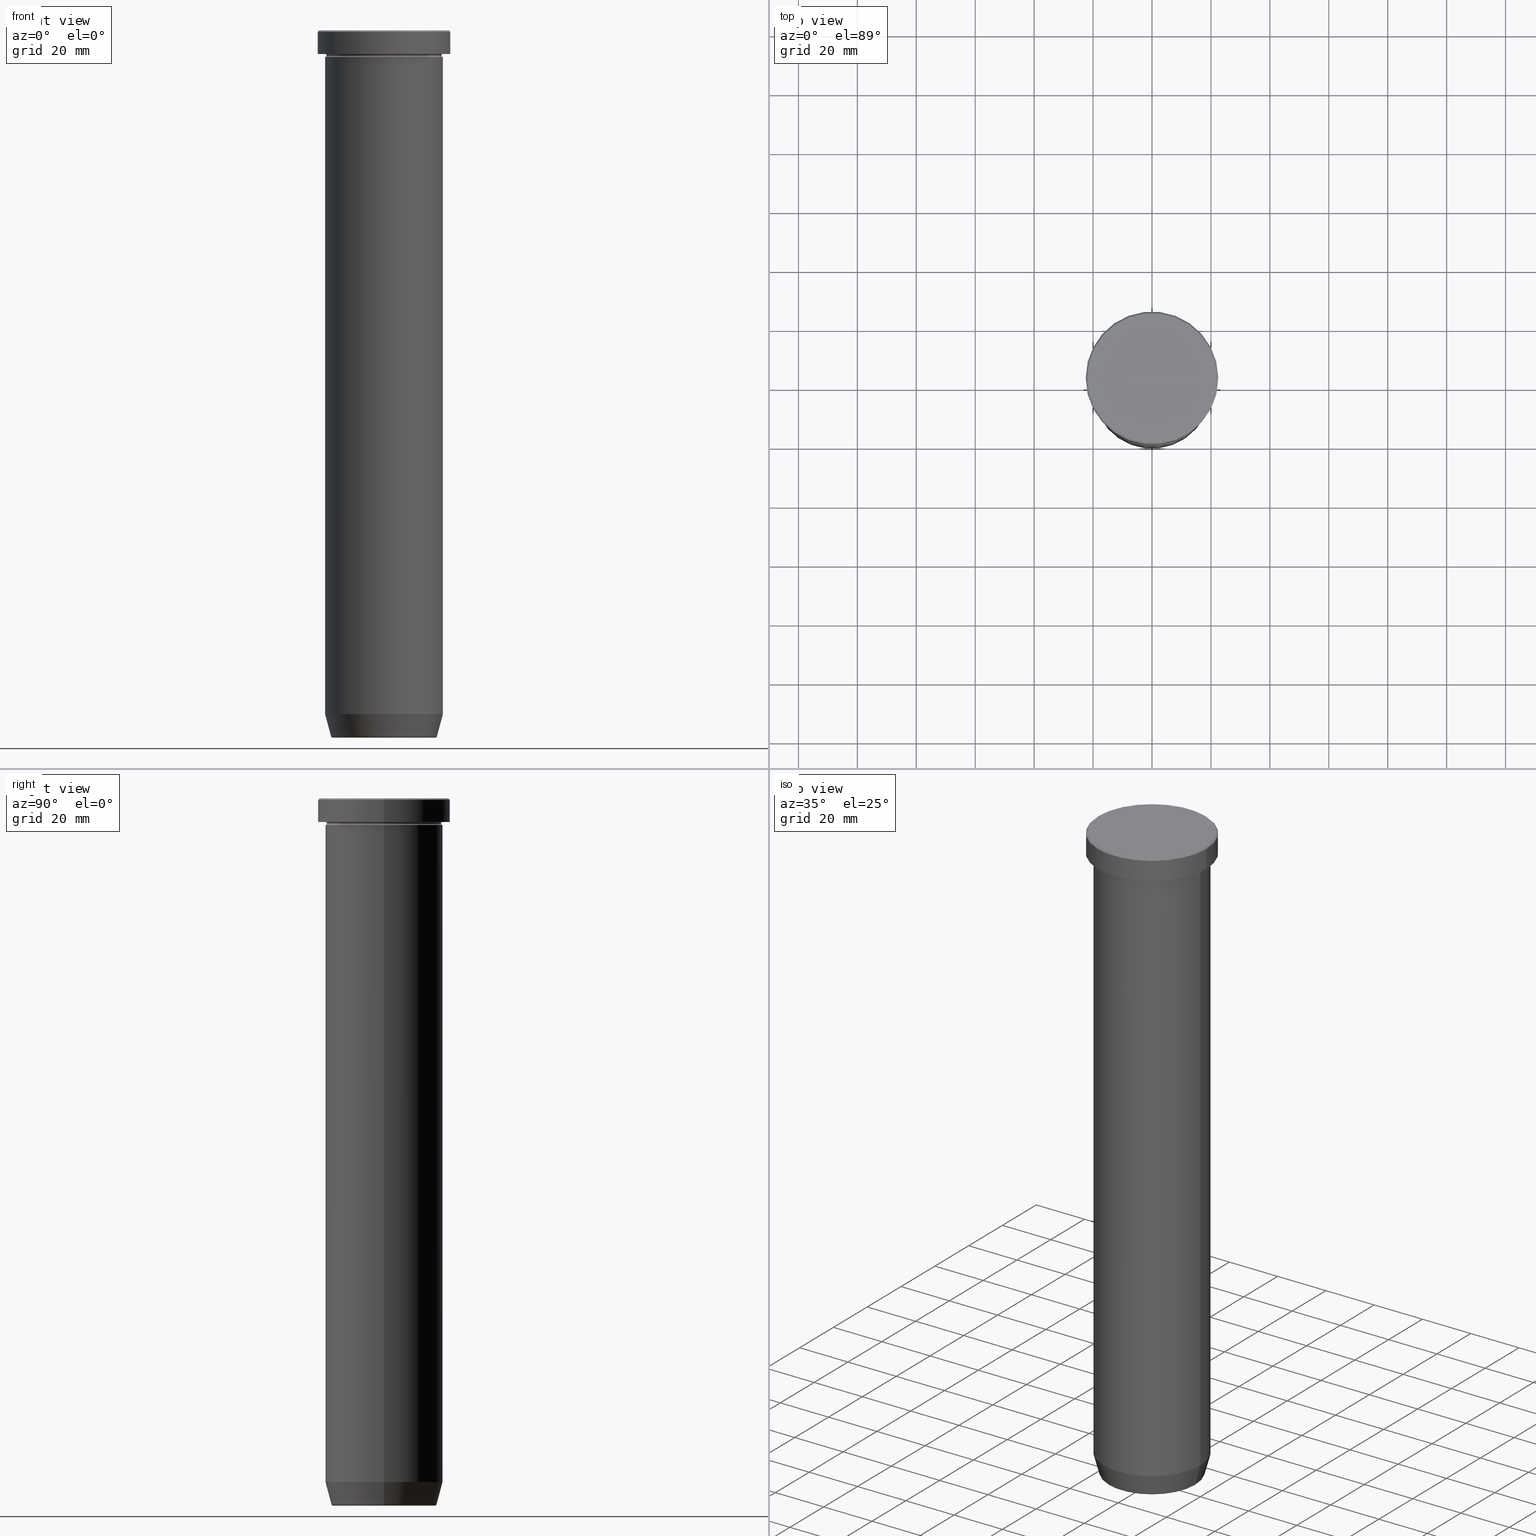
[diagram: canonical four-view strip — front | top / right | iso, engineering-drawing reading convention]
A machine part, canonical four-view strip (front | top / right | iso — engineering-drawing reading convention). The complete STEP part file that produces these views, byte-faithful:
ISO-10303-21;
HEADER;
FILE_DESCRIPTION (( 'STEP AP203' ),
    '1' );
FILE_NAME ('8bd0.STEP',
    '2024-01-02T17:34:54',
    ( '' ),
    ( '' ),
    'SwSTEP 2.0',
    'SolidWorks 2019',
    '' );
FILE_SCHEMA (( 'CONFIG_CONTROL_DESIGN' ));
ENDSEC;

DATA;
#1 = DIRECTION ( 'NONE',  ( 1.000000000000000000, 0.000000000000000000, 0.000000000000000000 ) ) ;
#2 = ADVANCED_FACE ( 'NONE', ( #218 ), #393, .F. ) ;
#3 = ORIENTED_EDGE ( 'NONE', *, *, #151, .F. ) ;
#4 = ADVANCED_FACE ( 'NONE', ( #82 ), #266, .T. ) ;
#5 = AXIS2_PLACEMENT_3D ( 'NONE', #219, #407, #364 ) ;
#6 = APPROVAL_PERSON_ORGANIZATION ( #49, #308, #545 ) ;
#7 = APPROVAL_STATUS ( 'not_yet_approved' ) ;
#8 = ORIENTED_EDGE ( 'NONE', *, *, #159, .T. ) ;
#9 = DIRECTION ( 'NONE',  ( -0.000000000000000000, -0.000000000000000000, 1.000000000000000000 ) ) ;
#10 = DIRECTION ( 'NONE',  ( 1.000000000000000000, 0.000000000000000000, 0.000000000000000000 ) ) ;
#11 = ORIENTED_EDGE ( 'NONE', *, *, #558, .T. ) ;
#12 = ADVANCED_FACE ( 'NONE', ( #68 ), #206, .F. ) ;
#13 = CARTESIAN_POINT ( 'NONE',  ( 0.000000000000000000, 0.000000000000000000, -8.499999999999998224 ) ) ;
#14 = EDGE_LOOP ( 'NONE', ( #440, #342, #324, #197 ) ) ;
#15 = ORIENTED_EDGE ( 'NONE', *, *, #556, .F. ) ;
#16 = TOROIDAL_SURFACE ( 'NONE', #594, 17.47274296656153680, 0.5000000000000000000 ) ;
#17 = CARTESIAN_POINT ( 'NONE',  ( 0.000000000000000000, 0.000000000000000000, 0.000000000000000000 ) ) ;
#18 = AXIS2_PLACEMENT_3D ( 'NONE', #39, #225, #591 ) ;
#19 = DIRECTION ( 'NONE',  ( 0.7071067811865426878, 8.659560562354874926E-17, -0.7071067811865524577 ) ) ;
#20 = DIRECTION ( 'NONE',  ( 0.000000000000000000, 0.000000000000000000, -1.000000000000000000 ) ) ;
#21 = DIRECTION ( 'NONE',  ( 0.000000000000000000, 0.000000000000000000, -1.000000000000000000 ) ) ;
#22 = ORIENTED_EDGE ( 'NONE', *, *, #445, .T. ) ;
#23 = FACE_OUTER_BOUND ( 'NONE', #326, .T. ) ;
#24 = EDGE_CURVE ( 'NONE', #300, #38, #570, .T. ) ;
#25 = CLOSED_SHELL ( 'NONE', ( #41, #339, #119, #454, #4, #171, #2, #73 ) ) ;
#26 = ORIENTED_EDGE ( 'NONE', *, *, #256, .T. ) ;
#27 = DIRECTION ( 'NONE',  ( 1.000000000000000000, 0.000000000000000000, 0.000000000000000000 ) ) ;
#28 = CIRCLE ( 'NONE', #361, 22.50000000000000000 ) ;
#29 = EDGE_LOOP ( 'NONE', ( #55, #426, #236, #427 ) ) ;
#30 = DIRECTION ( 'NONE',  ( -0.000000000000000000, -0.000000000000000000, 1.000000000000000000 ) ) ;
#31 = CALENDAR_DATE ( 2024, 2, 1 ) ;
#32 = EDGE_LOOP ( 'NONE', ( #369, #200, #66, #192 ) ) ;
#33 = APPROVAL_DATE_TIME ( #400, #539 ) ;
#34 = EDGE_CURVE ( 'NONE', #518, #245, #132, .T. ) ;
#35 = AXIS2_PLACEMENT_3D ( 'NONE', #391, #434, #428 ) ;
#36 = CIRCLE ( 'NONE', #5, 20.00000000000000000 ) ;
#37 = DIRECTION ( 'NONE',  ( -0.2588190451025212391, 3.169619151431771721E-17, 0.9659258262890680902 ) ) ;
#38 = VERTEX_POINT ( 'NONE', #372 ) ;
#39 = CARTESIAN_POINT ( 'NONE',  ( 0.000000000000000000, 0.000000000000000000, -8.499999999999998224 ) ) ;
#40 = CARTESIAN_POINT ( 'NONE',  ( 0.000000000000000000, 0.000000000000000000, -0.5000000000000004441 ) ) ;
#41 = ADVANCED_FACE ( 'NONE', ( #465 ), #535, .T. ) ;
#42 = DIRECTION ( 'NONE',  ( -0.000000000000000000, -0.000000000000000000, 1.000000000000000000 ) ) ;
#43 = ORIENTED_EDGE ( 'NONE', *, *, #259, .T. ) ;
#44 = CIRCLE ( 'NONE', #415, 22.00000000000000711 ) ;
#45 = AXIS2_PLACEMENT_3D ( 'NONE', #580, #265, #402 ) ;
#46 = EDGE_LOOP ( 'NONE', ( #97, #250, #515, #564 ) ) ;
#47 = CC_DESIGN_DATE_AND_TIME_ASSIGNMENT ( #215, #495, ( #569 ) ) ;
#48 = ORIENTED_EDGE ( 'NONE', *, *, #444, .F. ) ;
#49 = PERSON_AND_ORGANIZATION ( #316, #584 ) ;
#50 = AXIS2_PLACEMENT_3D ( 'NONE', #254, #165, #346 ) ;
#51 = CONICAL_SURFACE ( 'NONE', #348, 22.00000000000000711, 0.7853981633974415066 ) ;
#52 = DIRECTION ( 'NONE',  ( -0.000000000000000000, -0.000000000000000000, 1.000000000000000000 ) ) ;
#53 = DIRECTION ( 'NONE',  ( -0.000000000000000000, -0.000000000000000000, 1.000000000000000000 ) ) ;
#54 = EDGE_LOOP ( 'NONE', ( #441, #334 ) ) ;
#55 = ORIENTED_EDGE ( 'NONE', *, *, #497, .T. ) ;
#56 = ORIENTED_EDGE ( 'NONE', *, *, #223, .T. ) ;
#57 = ORIENTED_EDGE ( 'NONE', *, *, #319, .T. ) ;
#58 = AXIS2_PLACEMENT_3D ( 'NONE', #511, #550, #417 ) ;
#59 = CARTESIAN_POINT ( 'NONE',  ( -22.50000000000000000, 2.755455298081544778E-15, -0.5000000000000004441 ) ) ;
#60 = AXIS2_PLACEMENT_3D ( 'NONE', #336, #253, #442 ) ;
#61 = ORIENTED_EDGE ( 'NONE', *, *, #259, .F. ) ;
#62 = CARTESIAN_POINT ( 'NONE',  ( -20.00000000000000000, 2.449293598294706513E-15, -8.999999999999998224 ) ) ;
#63 = EDGE_LOOP ( 'NONE', ( #508, #436, #289, #150 ) ) ;
#64 = ADVANCED_FACE ( 'NONE', ( #136 ), #597, .T. ) ;
#65 = LINE ( 'NONE', #478, #523 ) ;
#66 = ORIENTED_EDGE ( 'NONE', *, *, #103, .T. ) ;
#67 = CARTESIAN_POINT ( 'NONE',  ( 17.47274296656153680, 0.000000000000000000, -240.0000000000000000 ) ) ;
#68 = FACE_OUTER_BOUND ( 'NONE', #376, .T. ) ;
#69 = ORIENTED_EDGE ( 'NONE', *, *, #382, .T. ) ;
#70 = DIRECTION ( 'NONE',  ( 0.2588190451025212391, 0.000000000000000000, 0.9659258262890680902 ) ) ;
#71 = CARTESIAN_POINT ( 'NONE',  ( 0.000000000000000000, 0.000000000000000000, 0.000000000000000000 ) ) ;
#72 = CALENDAR_DATE ( 2024, 2, 1 ) ;
#73 = ADVANCED_FACE ( 'NONE', ( #377 ), #16, .T. ) ;
#74 = FACE_OUTER_BOUND ( 'NONE', #275, .T. ) ;
#75 = AXIS2_PLACEMENT_3D ( 'NONE', #271, #542, #451 ) ;
#76 = CC_DESIGN_PERSON_AND_ORGANIZATION_ASSIGNMENT ( #303, #486, ( #569 ) ) ;
#77 = PERSON_AND_ORGANIZATION_ROLE ( 'design_owner' ) ;
#78 = CARTESIAN_POINT ( 'NONE',  ( 20.00000000000000000, 0.000000000000000000, -8.499999999999996447 ) ) ;
#79 = PERSON_AND_ORGANIZATION ( #316, #584 ) ;
#80 = ORIENTED_EDGE ( 'NONE', *, *, #181, .F. ) ;
#81 = CARTESIAN_POINT ( 'NONE',  ( 20.00000000000000000, 0.000000000000000000, -8.999999999999998224 ) ) ;
#82 = FACE_OUTER_BOUND ( 'NONE', #524, .T. ) ;
#83 = ORIENTED_EDGE ( 'NONE', *, *, #107, .F. ) ;
#84 = CIRCLE ( 'NONE', #311, 0.5000000000000004441 ) ;
#85 = EDGE_LOOP ( 'NONE', ( #335, #148, #302, #189 ) ) ;
#86 = EDGE_CURVE ( 'NONE', #450, #479, #310, .T. ) ;
#87 = CYLINDRICAL_SURFACE ( 'NONE', #461, 22.50000000000000000 ) ;
#88 = CARTESIAN_POINT ( 'NONE',  ( -20.00000000000000355, 2.449293598294706907E-15, -231.9999999999999716 ) ) ;
#89 = ORIENTED_EDGE ( 'NONE', *, *, #264, .F. ) ;
#90 = CLOSED_SHELL ( 'NONE', ( #472, #255, #105, #470, #599, #64, #111, #301, #456, #153, #12, #188, #283 ) ) ;
#91 = DIRECTION ( 'NONE',  ( 0.000000000000000000, 0.000000000000000000, -1.000000000000000000 ) ) ;
#92 = CONICAL_SURFACE ( 'NONE', #437, 17.85640646055101399, 0.2617993877991499629 ) ;
#93 = ORIENTED_EDGE ( 'NONE', *, *, #34, .F. ) ;
#94 = CARTESIAN_POINT ( 'NONE',  ( 0.000000000000000000, 0.000000000000000000, -50.00000000000000000 ) ) ;
#95 = ORIENTED_EDGE ( 'NONE', *, *, #24, .F. ) ;
#96 = DIRECTION ( 'NONE',  ( -0.000000000000000000, -0.000000000000000000, 1.000000000000000000 ) ) ;
#97 = ORIENTED_EDGE ( 'NONE', *, *, #243, .F. ) ;
#98 = FACE_OUTER_BOUND ( 'NONE', #32, .T. ) ;
#99 = EDGE_CURVE ( 'NONE', #38, #300, #44, .T. ) ;
#100 = AXIS2_PLACEMENT_3D ( 'NONE', #498, #274, #186 ) ;
#101 = CIRCLE ( 'NONE', #194, 20.00000000000000000 ) ;
#102 = DIRECTION ( 'NONE',  ( -1.000000000000000000, 0.000000000000000000, 0.000000000000000000 ) ) ;
#103 = EDGE_CURVE ( 'NONE', #555, #284, #134, .T. ) ;
#104 = EDGE_LOOP ( 'NONE', ( #15, #157, #366, #333 ) ) ;
#105 = ADVANCED_FACE ( 'NONE', ( #420 ), #373, .F. ) ;
#106 = CARTESIAN_POINT ( 'NONE',  ( 0.000000000000000000, 0.000000000000000000, -8.499999999999996447 ) ) ;
#107 = EDGE_CURVE ( 'NONE', #38, #555, #309, .T. ) ;
#108 = LOCAL_TIME ( 18, 34, 54.00000000000000000, #504 ) ;
#109 = AXIS2_PLACEMENT_3D ( 'NONE', #78, #164, #296 ) ;
#110 = APPROVAL_STATUS ( 'not_yet_approved' ) ;
#111 = ADVANCED_FACE ( 'NONE', ( #496 ), #360, .T. ) ;
#112 = CARTESIAN_POINT ( 'NONE',  ( 0.000000000000000000, 0.000000000000000000, -7.999999999999998224 ) ) ;
#113 = PERSON_AND_ORGANIZATION ( #316, #584 ) ;
#114 = DIRECTION ( 'NONE',  ( 0.000000000000000000, -1.000000000000000000, 0.000000000000000000 ) ) ;
#115 = CIRCLE ( 'NONE', #323, 20.00000000000000000 ) ;
#116 = FACE_OUTER_BOUND ( 'NONE', #562, .T. ) ;
#117 = CIRCLE ( 'NONE', #561, 17.47274296656153680 ) ;
#118 = COORDINATED_UNIVERSAL_TIME_OFFSET ( 1, 0, .AHEAD. ) ;
#119 = ADVANCED_FACE ( 'NONE', ( #534 ), #494, .T. ) ;
#120 = DIRECTION ( 'NONE',  ( -0.000000000000000000, -0.000000000000000000, 1.000000000000000000 ) ) ;
#121 = LINE ( 'NONE', #268, #448 ) ;
#122 = CARTESIAN_POINT ( 'NONE',  ( 17.47274296656153680, 0.000000000000000000, -239.5000000000000000 ) ) ;
#123 = CC_DESIGN_PERSON_AND_ORGANIZATION_ASSIGNMENT ( #315, #506, ( #514 ) ) ;
#124 = CARTESIAN_POINT ( 'NONE',  ( 0.000000000000000000, 0.000000000000000000, 0.000000000000000000 ) ) ;
#125 = VECTOR ( 'NONE', #520, 1000.000000000000000 ) ;
#126 = DIRECTION ( 'NONE',  ( 0.000000000000000000, 0.000000000000000000, -1.000000000000000000 ) ) ;
#127 = DIRECTION ( 'NONE',  ( -0.000000000000000000, -0.000000000000000000, 1.000000000000000000 ) ) ;
#128 = VECTOR ( 'NONE', #163, 1000.000000000000000 ) ;
#129 = DIRECTION ( 'NONE',  ( -0.000000000000000000, -0.000000000000000000, 1.000000000000000000 ) ) ;
#130 = DIRECTION ( 'NONE',  ( 0.000000000000000000, 0.000000000000000000, -1.000000000000000000 ) ) ;
#131 = DIRECTION ( 'NONE',  ( -0.000000000000000000, -0.000000000000000000, 1.000000000000000000 ) ) ;
#132 = LINE ( 'NONE', #190, #546 ) ;
#133 = ORIENTED_EDGE ( 'NONE', *, *, #312, .T. ) ;
#134 = CIRCLE ( 'NONE', #394, 22.50000000000000000 ) ;
#135 = EDGE_CURVE ( 'NONE', #479, #152, #305, .T. ) ;
#136 = FACE_OUTER_BOUND ( 'NONE', #383, .T. ) ;
#137 = UNCERTAINTY_MEASURE_WITH_UNIT (LENGTH_MEASURE( 1.000000000000000082E-05 ), #563, 'distance_accuracy_value', 'NONE');
#138 = ORIENTED_EDGE ( 'NONE', *, *, #328, .T. ) ;
#139 = DIRECTION ( 'NONE',  ( -0.000000000000000000, -0.000000000000000000, 1.000000000000000000 ) ) ;
#140 = ORIENTED_EDGE ( 'NONE', *, *, #86, .T. ) ;
#141 = ORIENTED_EDGE ( 'NONE', *, *, #243, .T. ) ;
#142 = ORIENTED_EDGE ( 'NONE', *, *, #526, .T. ) ;
#143 = DIRECTION ( 'NONE',  ( -0.000000000000000000, -0.000000000000000000, 1.000000000000000000 ) ) ;
#144 = EDGE_CURVE ( 'NONE', #567, #555, #586, .T. ) ;
#145 = EDGE_CURVE ( 'NONE', #152, #331, #121, .T. ) ;
#146 = EDGE_CURVE ( 'NONE', #245, #469, #193, .T. ) ;
#147 = FACE_OUTER_BOUND ( 'NONE', #460, .T. ) ;
#148 = ORIENTED_EDGE ( 'NONE', *, *, #99, .F. ) ;
#149 = AXIS2_PLACEMENT_3D ( 'NONE', #322, #9, #551 ) ;
#150 = ORIENTED_EDGE ( 'NONE', *, *, #256, .F. ) ;
#151 = EDGE_CURVE ( 'NONE', #176, #567, #491, .T. ) ;
#152 = VERTEX_POINT ( 'NONE', #467 ) ;
#153 = ADVANCED_FACE ( 'NONE', ( #521 ), #196, .T. ) ;
#154 = DIRECTION ( 'NONE',  ( -0.000000000000000000, -0.000000000000000000, 1.000000000000000000 ) ) ;
#155 = DIRECTION ( 'NONE',  ( 1.000000000000000000, 0.000000000000000000, 0.000000000000000000 ) ) ;
#156 = EDGE_CURVE ( 'NONE', #205, #331, #182, .T. ) ;
#157 = ORIENTED_EDGE ( 'NONE', *, *, #444, .T. ) ;
#158 = APPLICATION_CONTEXT ( 'configuration controlled 3d designs of mechanical parts and assemblies' ) ;
#159 = EDGE_CURVE ( 'NONE', #559, #160, #395, .T. ) ;
#160 = VERTEX_POINT ( 'NONE', #429 ) ;
#161 = DIRECTION ( 'NONE',  ( -1.000000000000000000, 0.000000000000000000, -0.000000000000000000 ) ) ;
#162 = APPROVAL_DATE_TIME ( #577, #235 ) ;
#163 = DIRECTION ( 'NONE',  ( -0.7071067811865426878, 0.000000000000000000, -0.7071067811865524577 ) ) ;
#164 = DIRECTION ( 'NONE',  ( 0.000000000000000000, -1.000000000000000000, 0.000000000000000000 ) ) ;
#165 = DIRECTION ( 'NONE',  ( -0.000000000000000000, -0.000000000000000000, 1.000000000000000000 ) ) ;
#166 = CARTESIAN_POINT ( 'NONE',  ( -17.47274296656153680, 2.139793874632401172E-15, -239.5000000000000000 ) ) ;
#167 = APPROVAL_PERSON_ORGANIZATION ( #79, #235, #488 ) ;
#168 = AXIS2_PLACEMENT_3D ( 'NONE', #263, #30, #532 ) ;
#169 = CONICAL_SURFACE ( 'NONE', #149, 17.85640646055101399, 0.2617993877991499629 ) ;
#170 = DIRECTION ( 'NONE',  ( 1.000000000000000000, 0.000000000000000000, 0.000000000000000000 ) ) ;
#171 = ADVANCED_FACE ( 'NONE', ( #147 ), #169, .T. ) ;
#172 = CARTESIAN_POINT ( 'NONE',  ( -20.00000000000000000, 2.449293598294706513E-15, -50.00000000000000000 ) ) ;
#173 = CARTESIAN_POINT ( 'NONE',  ( -17.47274296656153680, 2.169366823916868503E-15, -240.0000000000000000 ) ) ;
#174 = PERSON_AND_ORGANIZATION_ROLE ( 'design_supplier' ) ;
#175 = CC_DESIGN_PERSON_AND_ORGANIZATION_ASSIGNMENT ( #493, #77, ( #252 ) ) ;
#176 = VERTEX_POINT ( 'NONE', #381 ) ;
#177 = DIRECTION ( 'NONE',  ( -0.000000000000000000, -0.000000000000000000, 1.000000000000000000 ) ) ;
#178 = CARTESIAN_POINT ( 'NONE',  ( 0.000000000000000000, 0.000000000000000000, -240.0000000000000000 ) ) ;
#179 = CARTESIAN_POINT ( 'NONE',  ( -20.00000000000000000, 2.449293598294706513E-15, 0.000000000000000000 ) ) ;
#180 = APPROVAL_DATE_TIME ( #593, #308 ) ;
#181 = EDGE_CURVE ( 'NONE', #380, #288, #115, .T. ) ;
#182 = CIRCLE ( 'NONE', #238, 20.00000000000000355 ) ;
#183 = CIRCLE ( 'NONE', #45, 0.5000000000000004441 ) ;
#184 = CARTESIAN_POINT ( 'NONE',  ( 0.000000000000000000, 0.000000000000000000, -239.5000000000000000 ) ) ;
#185 = FACE_OUTER_BOUND ( 'NONE', #233, .T. ) ;
#186 = DIRECTION ( 'NONE',  ( 1.000000000000000000, 0.000000000000000000, 0.000000000000000000 ) ) ;
#187 = DIRECTION ( 'NONE',  ( -0.000000000000000000, -0.000000000000000000, 1.000000000000000000 ) ) ;
#188 = ADVANCED_FACE ( 'NONE', ( #473 ), #547, .F. ) ;
#189 = ORIENTED_EDGE ( 'NONE', *, *, #328, .F. ) ;
#190 = CARTESIAN_POINT ( 'NONE',  ( 20.00000000000000000, 0.000000000000000000, 0.000000000000000000 ) ) ;
#191 = DIRECTION ( 'NONE',  ( -0.000000000000000000, -0.000000000000000000, 1.000000000000000000 ) ) ;
#192 = ORIENTED_EDGE ( 'NONE', *, *, #505, .F. ) ;
#193 = CIRCLE ( 'NONE', #528, 20.00000000000000000 ) ;
#194 = AXIS2_PLACEMENT_3D ( 'NONE', #341, #566, #27 ) ;
#195 = APPROVAL_PERSON_ORGANIZATION ( #356, #539, #490 ) ;
#196 = CYLINDRICAL_SURFACE ( 'NONE', #522, 20.00000000000000000 ) ;
#197 = ORIENTED_EDGE ( 'NONE', *, *, #359, .F. ) ;
#198 = VERTEX_POINT ( 'NONE', #509 ) ;
#199 = PRODUCT_DEFINITION ( 'NEZN�M�', '', #514, #516 ) ;
#200 = ORIENTED_EDGE ( 'NONE', *, *, #144, .T. ) ;
#201 = ORIENTED_EDGE ( 'NONE', *, *, #216, .F. ) ;
#202 =( NAMED_UNIT ( * ) PLANE_ANGLE_UNIT ( ) SI_UNIT ( $, .RADIAN. ) );
#203 = CARTESIAN_POINT ( 'NONE',  ( 0.000000000000000000, 0.000000000000000000, 0.000000000000000000 ) ) ;
#204 = EDGE_LOOP ( 'NONE', ( #57, #8 ) ) ;
#205 = VERTEX_POINT ( 'NONE', #278 ) ;
#206 = TOROIDAL_SURFACE ( 'NONE', #168, 20.00000000000000000, 0.5000000000000000000 ) ;
#207 = CIRCLE ( 'NONE', #583, 17.95570587970606979 ) ;
#208 = DIRECTION ( 'NONE',  ( 1.000000000000000000, 0.000000000000000000, 0.000000000000000000 ) ) ;
#209 = CARTESIAN_POINT ( 'NONE',  ( 0.000000000000000000, 0.000000000000000000, -240.0000000000000000 ) ) ;
#210 = PLANE ( 'NONE',  #337 ) ;
#211 = CARTESIAN_POINT ( 'NONE',  ( 20.00000000000000000, 2.449293598294706513E-15, -8.499999999999998224 ) ) ;
#212 = CARTESIAN_POINT ( 'NONE',  ( 0.000000000000000000, 0.000000000000000000, 0.000000000000000000 ) ) ;
#213 = AXIS2_PLACEMENT_3D ( 'NONE', #330, #244, #102 ) ;
#214 = ORIENTED_EDGE ( 'NONE', *, *, #579, .F. ) ;
#215 = DATE_AND_TIME ( #72, #320 ) ;
#216 = EDGE_CURVE ( 'NONE', #518, #295, #492, .T. ) ;
#217 = CARTESIAN_POINT ( 'NONE',  ( 0.000000000000000000, 0.000000000000000000, -50.00000000000000000 ) ) ;
#218 = FACE_OUTER_BOUND ( 'NONE', #474, .T. ) ;
#219 = CARTESIAN_POINT ( 'NONE',  ( 0.000000000000000000, 0.000000000000000000, -50.00000000000000000 ) ) ;
#220 = SHAPE_DEFINITION_REPRESENTATION ( #260, #585 ) ;
#221 = EDGE_CURVE ( 'NONE', #295, #518, #406, .T. ) ;
#222 = CARTESIAN_POINT ( 'NONE',  ( -19.50000000000000000, 2.418677428316022726E-15, -8.499999999999996447 ) ) ;
#223 = EDGE_CURVE ( 'NONE', #300, #284, #65, .T. ) ;
#224 = APPLICATION_PROTOCOL_DEFINITION ( 'international standard', 'config_control_design', 1994, #430 ) ;
#225 = DIRECTION ( 'NONE',  ( 0.000000000000000000, 0.000000000000000000, -1.000000000000000000 ) ) ;
#226 = DIRECTION ( 'NONE',  ( 1.000000000000000000, 0.000000000000000000, 0.000000000000000000 ) ) ;
#227 = AXIS2_PLACEMENT_3D ( 'NONE', #229, #463, #232 ) ;
#228 = EDGE_CURVE ( 'NONE', #479, #450, #117, .T. ) ;
#229 = CARTESIAN_POINT ( 'NONE',  ( 0.000000000000000000, 0.000000000000000000, -50.00000000000000000 ) ) ;
#230 = COORDINATED_UNIVERSAL_TIME_OFFSET ( 1, 0, .AHEAD. ) ;
#231 = DIRECTION ( 'NONE',  ( -0.000000000000000000, -0.000000000000000000, 1.000000000000000000 ) ) ;
#232 = DIRECTION ( 'NONE',  ( 1.000000000000000000, 0.000000000000000000, 0.000000000000000000 ) ) ;
#233 = EDGE_LOOP ( 'NONE', ( #433, #590, #242, #138 ) ) ;
#234 = CC_DESIGN_APPROVAL ( #308, ( #514 ) ) ;
#235 = APPROVAL ( #110, 'NEUR�EN�' ) ;
#236 = ORIENTED_EDGE ( 'NONE', *, *, #156, .F. ) ;
#237 = ORIENTED_EDGE ( 'NONE', *, *, #86, .F. ) ;
#238 = AXIS2_PLACEMENT_3D ( 'NONE', #378, #53, #598 ) ;
#239 = CARTESIAN_POINT ( 'NONE',  ( 0.000000000000000000, 0.000000000000000000, -7.999999999999998224 ) ) ;
#240 = DIRECTION ( 'NONE',  ( -0.000000000000000000, -0.000000000000000000, 1.000000000000000000 ) ) ;
#241 = ORIENTED_EDGE ( 'NONE', *, *, #319, .F. ) ;
#242 = ORIENTED_EDGE ( 'NONE', *, *, #505, .T. ) ;
#243 = EDGE_CURVE ( 'NONE', #286, #388, #416, .T. ) ;
#244 = DIRECTION ( 'NONE',  ( -0.000000000000000000, -0.000000000000000000, 1.000000000000000000 ) ) ;
#245 = VERTEX_POINT ( 'NONE', #81 ) ;
#246 = AXIS2_PLACEMENT_3D ( 'NONE', #401, #120, #396 ) ;
#247 = CONICAL_SURFACE ( 'NONE', #279, 22.00000000000000711, 0.7853981633974415066 ) ;
#248 = CARTESIAN_POINT ( 'NONE',  ( -22.50000000000000000, 2.755455298081544778E-15, -7.999999999999998224 ) ) ;
#249 = CYLINDRICAL_SURFACE ( 'NONE', #60, 20.00000000000000000 ) ;
#250 = ORIENTED_EDGE ( 'NONE', *, *, #351, .T. ) ;
#251 = DIRECTION ( 'NONE',  ( -1.224646799147353207E-16, 1.000000000000000000, 0.000000000000000000 ) ) ;
#252 = PRODUCT ( '8bd0', '8bd0', '', ( #344 ) ) ;
#253 = DIRECTION ( 'NONE',  ( -0.000000000000000000, -0.000000000000000000, 1.000000000000000000 ) ) ;
#254 = CARTESIAN_POINT ( 'NONE',  ( 0.000000000000000000, 0.000000000000000000, 0.000000000000000000 ) ) ;
#255 = ADVANCED_FACE ( 'NONE', ( #455 ), #306, .F. ) ;
#256 = EDGE_CURVE ( 'NONE', #450, #198, #84, .T. ) ;
#257 = CARTESIAN_POINT ( 'NONE',  ( 19.50000000000000000, 0.000000000000000000, -8.499999999999996447 ) ) ;
#258 = CALENDAR_DATE ( 2024, 2, 1 ) ;
#259 = EDGE_CURVE ( 'NONE', #288, #380, #36, .T. ) ;
#260 = PRODUCT_DEFINITION_SHAPE ( 'NONE', 'NONE',  #199 ) ;
#261 = CIRCLE ( 'NONE', #513, 0.5000000000000004441 ) ;
#262 = DIRECTION ( 'NONE',  ( -0.000000000000000000, -0.000000000000000000, 1.000000000000000000 ) ) ;
#263 = CARTESIAN_POINT ( 'NONE',  ( 0.000000000000000000, 0.000000000000000000, -8.499999999999996447 ) ) ;
#264 = EDGE_CURVE ( 'NONE', #286, #160, #183, .T. ) ;
#265 = DIRECTION ( 'NONE',  ( -0.000000000000000000, -1.000000000000000000, -0.000000000000000000 ) ) ;
#266 = CYLINDRICAL_SURFACE ( 'NONE', #499, 20.00000000000000355 ) ;
#267 = COORDINATED_UNIVERSAL_TIME_OFFSET ( 1, 0, .AHEAD. ) ;
#268 = CARTESIAN_POINT ( 'NONE',  ( -17.85640646055101399, 2.186779101618792051E-15, -240.0000000000000000 ) ) ;
#269 = ORIENTED_EDGE ( 'NONE', *, *, #556, .T. ) ;
#270 = AXIS2_PLACEMENT_3D ( 'NONE', #313, #42, #419 ) ;
#271 = CARTESIAN_POINT ( 'NONE',  ( 0.000000000000000000, 0.000000000000000000, -8.499999999999996447 ) ) ;
#272 = CIRCLE ( 'NONE', #109, 0.5000000000000004441 ) ;
#273 = AXIS2_PLACEMENT_3D ( 'NONE', #17, #471, #208 ) ;
#274 = DIRECTION ( 'NONE',  ( 0.000000000000000000, 0.000000000000000000, -1.000000000000000000 ) ) ;
#275 = EDGE_LOOP ( 'NONE', ( #386, #133, #501, #93 ) ) ;
#276 = DIRECTION ( 'NONE',  ( -0.000000000000000000, -0.000000000000000000, 1.000000000000000000 ) ) ;
#277 = AXIS2_PLACEMENT_3D ( 'NONE', #282, #231, #553 ) ;
#278 = CARTESIAN_POINT ( 'NONE',  ( 20.00000000000000355, 0.000000000000000000, -231.9999999999999716 ) ) ;
#279 = AXIS2_PLACEMENT_3D ( 'NONE', #212, #126, #592 ) ;
#280 = LOCAL_TIME ( 18, 34, 54.00000000000000000, #230 ) ;
#281 = DIRECTION ( 'NONE',  ( -0.000000000000000000, -0.000000000000000000, 1.000000000000000000 ) ) ;
#282 = CARTESIAN_POINT ( 'NONE',  ( 0.000000000000000000, 0.000000000000000000, -239.5000000000000000 ) ) ;
#283 = ADVANCED_FACE ( 'NONE', ( #588 ), #51, .T. ) ;
#284 = VERTEX_POINT ( 'NONE', #543 ) ;
#285 = DIRECTION ( 'NONE',  ( -1.000000000000000000, 0.000000000000000000, 0.000000000000000000 ) ) ;
#286 = VERTEX_POINT ( 'NONE', #222 ) ;
#287 = DIRECTION ( 'NONE',  ( 1.000000000000000000, 0.000000000000000000, 0.000000000000000000 ) ) ;
#288 = VERTEX_POINT ( 'NONE', #587 ) ;
#289 = ORIENTED_EDGE ( 'NONE', *, *, #497, .F. ) ;
#290 = AXIS2_PLACEMENT_3D ( 'NONE', #217, #20, #161 ) ;
#291 = DIRECTION ( 'NONE',  ( -1.000000000000000000, -1.224646799147349509E-16, 0.000000000000000000 ) ) ;
#292 = DIRECTION ( 'NONE',  ( 1.000000000000000000, 0.000000000000000000, 0.000000000000000000 ) ) ;
#293 = ORIENTED_EDGE ( 'NONE', *, *, #475, .T. ) ;
#294 =( NAMED_UNIT ( * ) SI_UNIT ( $, .STERADIAN. ) SOLID_ANGLE_UNIT ( ) );
#295 = VERTEX_POINT ( 'NONE', #172 ) ;
#296 = DIRECTION ( 'NONE',  ( 0.000000000000000000, 0.000000000000000000, -1.000000000000000000 ) ) ;
#297 = AXIS2_PLACEMENT_3D ( 'NONE', #502, #541, #413 ) ;
#298 = CIRCLE ( 'NONE', #213, 17.95570587970606979 ) ;
#299 = CIRCLE ( 'NONE', #530, 0.5000000000000004441 ) ;
#300 = VERTEX_POINT ( 'NONE', #354 ) ;
#301 = ADVANCED_FACE ( 'NONE', ( #185 ), #87, .T. ) ;
#302 = ORIENTED_EDGE ( 'NONE', *, *, #107, .T. ) ;
#303 = PERSON_AND_ORGANIZATION ( #316, #584 ) ;
#304 = APPROVAL_STATUS ( 'not_yet_approved' ) ;
#305 = CIRCLE ( 'NONE', #321, 0.5000000000000004441 ) ;
#306 = TOROIDAL_SURFACE ( 'NONE', #18, 20.00000000000000000, 0.5000000000000000000 ) ;
#307 = DIRECTION ( 'NONE',  ( 0.000000000000000000, 0.000000000000000000, -1.000000000000000000 ) ) ;
#308 = APPROVAL ( #7, 'NEUR�EN�' ) ;
#309 = LINE ( 'NONE', #357, #128 ) ;
#310 = CIRCLE ( 'NONE', #100, 17.47274296656153680 ) ;
#311 = AXIS2_PLACEMENT_3D ( 'NONE', #122, #114, #596 ) ;
#312 = EDGE_CURVE ( 'NONE', #295, #469, #414, .T. ) ;
#313 = CARTESIAN_POINT ( 'NONE',  ( 0.000000000000000000, 0.000000000000000000, -7.999999999999998224 ) ) ;
#314 = DIRECTION ( 'NONE',  ( 0.000000000000000000, 0.000000000000000000, -1.000000000000000000 ) ) ;
#315 = PERSON_AND_ORGANIZATION ( #316, #584 ) ;
#316 = PERSON ( 'NEUR�EN�', 'NEUR�EN�', 'NEUR�EN�', ('NEUR�EN�'), ('NEUR�EN�'), ('NEUR�EN�') ) ;
#317 = DIRECTION ( 'NONE',  ( -1.000000000000000000, 0.000000000000000000, 0.000000000000000000 ) ) ;
#318 = DATE_AND_TIME ( #517, #280 ) ;
#319 = EDGE_CURVE ( 'NONE', #160, #559, #443, .T. ) ;
#320 = LOCAL_TIME ( 18, 34, 54.00000000000000000, #118 ) ;
#321 = AXIS2_PLACEMENT_3D ( 'NONE', #166, #347, #405 ) ;
#322 = CARTESIAN_POINT ( 'NONE',  ( 0.000000000000000000, 0.000000000000000000, -240.0000000000000000 ) ) ;
#323 = AXIS2_PLACEMENT_3D ( 'NONE', #94, #367, #292 ) ;
#324 = ORIENTED_EDGE ( 'NONE', *, *, #34, .T. ) ;
#325 = DIRECTION ( 'NONE',  ( -1.000000000000000000, 0.000000000000000000, 0.000000000000000000 ) ) ;
#326 = EDGE_LOOP ( 'NONE', ( #95, #56, #379, #83 ) ) ;
#327 = DIRECTION ( 'NONE',  ( 1.000000000000000000, 0.000000000000000000, 0.000000000000000000 ) ) ;
#328 = EDGE_CURVE ( 'NONE', #284, #555, #28, .T. ) ;
#329 = ORIENTED_EDGE ( 'NONE', *, *, #457, .F. ) ;
#330 = CARTESIAN_POINT ( 'NONE',  ( 0.000000000000000000, 0.000000000000000000, -239.6294095225512422 ) ) ;
#331 = VERTEX_POINT ( 'NONE', #88 ) ;
#332 = AXIS2_PLACEMENT_3D ( 'NONE', #13, #130, #317 ) ;
#333 = ORIENTED_EDGE ( 'NONE', *, *, #159, .F. ) ;
#334 = ORIENTED_EDGE ( 'NONE', *, *, #24, .T. ) ;
#335 = ORIENTED_EDGE ( 'NONE', *, *, #223, .F. ) ;
#336 = CARTESIAN_POINT ( 'NONE',  ( 0.000000000000000000, 0.000000000000000000, 0.000000000000000000 ) ) ;
#337 = AXIS2_PLACEMENT_3D ( 'NONE', #533, #307, #480 ) ;
#338 = PRODUCT_RELATED_PRODUCT_CATEGORY ( 'detail', '', ( #252 ) ) ;
#339 = ADVANCED_FACE ( 'NONE', ( #410 ), #92, .T. ) ;
#340 = CC_DESIGN_APPROVAL ( #539, ( #569 ) ) ;
#341 = CARTESIAN_POINT ( 'NONE',  ( 0.000000000000000000, 0.000000000000000000, -8.999999999999998224 ) ) ;
#342 = ORIENTED_EDGE ( 'NONE', *, *, #221, .T. ) ;
#343 = ORIENTED_EDGE ( 'NONE', *, *, #146, .T. ) ;
#344 = MECHANICAL_CONTEXT ( 'NONE', #158, 'mechanical' ) ;
#345 = FACE_BOUND ( 'NONE', #204, .T. ) ;
#346 = DIRECTION ( 'NONE',  ( 1.000000000000000000, 0.000000000000000000, 0.000000000000000000 ) ) ;
#347 = DIRECTION ( 'NONE',  ( 1.224646799147353207E-16, 1.000000000000000000, 0.000000000000000000 ) ) ;
#348 = AXIS2_PLACEMENT_3D ( 'NONE', #503, #349, #358 ) ;
#349 = DIRECTION ( 'NONE',  ( 0.000000000000000000, 0.000000000000000000, -1.000000000000000000 ) ) ;
#350 = SECURITY_CLASSIFICATION_LEVEL ( 'unclassified' ) ;
#351 = EDGE_CURVE ( 'NONE', #286, #469, #261, .T. ) ;
#352 = CARTESIAN_POINT ( 'NONE',  ( -22.50000000000000000, 2.755455298081544778E-15, 0.000000000000000000 ) ) ;
#353 = DIRECTION ( 'NONE',  ( 1.000000000000000000, 0.000000000000000000, 0.000000000000000000 ) ) ;
#354 = CARTESIAN_POINT ( 'NONE',  ( 22.00000000000000711, 2.724839128102860991E-15, 0.000000000000000000 ) ) ;
#355 = CARTESIAN_POINT ( 'NONE',  ( 22.50000000000000000, 0.000000000000000000, 0.000000000000000000 ) ) ;
#356 = PERSON_AND_ORGANIZATION ( #316, #584 ) ;
#357 = CARTESIAN_POINT ( 'NONE',  ( -22.00000000000000711, 0.000000000000000000, 0.000000000000000000 ) ) ;
#358 = DIRECTION ( 'NONE',  ( -1.000000000000000000, 0.000000000000000000, 0.000000000000000000 ) ) ;
#359 = EDGE_CURVE ( 'NONE', #469, #245, #101, .T. ) ;
#360 = PLANE ( 'NONE',  #297 ) ;
#361 = AXIS2_PLACEMENT_3D ( 'NONE', #424, #314, #544 ) ;
#362 = CARTESIAN_POINT ( 'NONE',  ( 20.00000000000000355, 0.000000000000000000, 0.000000000000000000 ) ) ;
#363 = DIRECTION ( 'NONE',  ( 1.000000000000000000, 0.000000000000000000, 0.000000000000000000 ) ) ;
#364 = DIRECTION ( 'NONE',  ( 1.000000000000000000, 0.000000000000000000, 0.000000000000000000 ) ) ;
#365 = LINE ( 'NONE', #362, #554 ) ;
#366 = ORIENTED_EDGE ( 'NONE', *, *, #264, .T. ) ;
#367 = DIRECTION ( 'NONE',  ( -0.000000000000000000, -0.000000000000000000, 1.000000000000000000 ) ) ;
#368 = DATE_TIME_ROLE ( 'creation_date' ) ;
#369 = ORIENTED_EDGE ( 'NONE', *, *, #151, .T. ) ;
#370 =( GEOMETRIC_REPRESENTATION_CONTEXT ( 3 ) GLOBAL_UNCERTAINTY_ASSIGNED_CONTEXT ( ( #137 ) ) GLOBAL_UNIT_ASSIGNED_CONTEXT ( ( #563, #202, #294 ) ) REPRESENTATION_CONTEXT ( 'NONE', 'WORKASPACE' ) );
#371 = CARTESIAN_POINT ( 'NONE',  ( 0.000000000000000000, 0.000000000000000000, -7.999999999999998224 ) ) ;
#372 = CARTESIAN_POINT ( 'NONE',  ( -22.00000000000000711, 0.000000000000000000, 0.000000000000000000 ) ) ;
#373 = TOROIDAL_SURFACE ( 'NONE', #435, 20.00000000000000000, 0.5000000000000000000 ) ;
#374 = DIRECTION ( 'NONE',  ( -0.000000000000000000, -0.000000000000000000, 1.000000000000000000 ) ) ;
#375 = VECTOR ( 'NONE', #129, 1000.000000000000000 ) ;
#376 = EDGE_LOOP ( 'NONE', ( #423, #48, #22, #343 ) ) ;
#377 = FACE_OUTER_BOUND ( 'NONE', #575, .T. ) ;
#378 = CARTESIAN_POINT ( 'NONE',  ( 0.000000000000000000, 0.000000000000000000, -231.9999999999999716 ) ) ;
#379 = ORIENTED_EDGE ( 'NONE', *, *, #103, .F. ) ;
#380 = VERTEX_POINT ( 'NONE', #398 ) ;
#381 = CARTESIAN_POINT ( 'NONE',  ( 22.50000000000000000, 0.000000000000000000, -7.999999999999998224 ) ) ;
#382 = EDGE_CURVE ( 'NONE', #198, #205, #581, .T. ) ;
#383 = EDGE_LOOP ( 'NONE', ( #201, #525 ) ) ;
#384 = ORIENTED_EDGE ( 'NONE', *, *, #475, .F. ) ;
#385 = AXIS2_PLACEMENT_3D ( 'NONE', #371, #96, #285 ) ;
#386 = ORIENTED_EDGE ( 'NONE', *, *, #216, .T. ) ;
#387 = MANIFOLD_SOLID_BREP ( 'Zkosen�1', #90 ) ;
#388 = VERTEX_POINT ( 'NONE', #257 ) ;
#389 = MANIFOLD_SOLID_BREP ( 'Zaoblit4', #25 ) ;
#390 = EDGE_LOOP ( 'NONE', ( #557, #43 ) ) ;
#391 = CARTESIAN_POINT ( 'NONE',  ( 0.000000000000000000, 0.000000000000000000, -231.9999999999999716 ) ) ;
#392 = ORIENTED_EDGE ( 'NONE', *, *, #156, .T. ) ;
#393 = PLANE ( 'NONE',  #459 ) ;
#394 = AXIS2_PLACEMENT_3D ( 'NONE', #40, #91, #462 ) ;
#395 = CIRCLE ( 'NONE', #449, 20.00000000000000000 ) ;
#396 = DIRECTION ( 'NONE',  ( 1.000000000000000000, 0.000000000000000000, 0.000000000000000000 ) ) ;
#397 = DIRECTION ( 'NONE',  ( 1.224646799147353207E-16, 1.000000000000000000, 0.000000000000000000 ) ) ;
#398 = CARTESIAN_POINT ( 'NONE',  ( 20.00000000000000000, 0.000000000000000000, -50.00000000000000000 ) ) ;
#399 = DIRECTION ( 'NONE',  ( 1.000000000000000000, 0.000000000000000000, 0.000000000000000000 ) ) ;
#400 = DATE_AND_TIME ( #31, #404 ) ;
#401 = CARTESIAN_POINT ( 'NONE',  ( 0.000000000000000000, 0.000000000000000000, 0.000000000000000000 ) ) ;
#402 = DIRECTION ( 'NONE',  ( 0.000000000000000000, 0.000000000000000000, -1.000000000000000000 ) ) ;
#403 = DIRECTION ( 'NONE',  ( -0.000000000000000000, -0.000000000000000000, 1.000000000000000000 ) ) ;
#404 = LOCAL_TIME ( 18, 34, 54.00000000000000000, #267 ) ;
#405 = DIRECTION ( 'NONE',  ( -1.000000000000000000, 1.224646799147349509E-16, 0.000000000000000000 ) ) ;
#406 = CIRCLE ( 'NONE', #481, 20.00000000000000000 ) ;
#407 = DIRECTION ( 'NONE',  ( -0.000000000000000000, -0.000000000000000000, 1.000000000000000000 ) ) ;
#408 = DIRECTION ( 'NONE',  ( -0.000000000000000000, -0.000000000000000000, 1.000000000000000000 ) ) ;
#409 = DIRECTION ( 'NONE',  ( 1.000000000000000000, 0.000000000000000000, 0.000000000000000000 ) ) ;
#410 = FACE_OUTER_BOUND ( 'NONE', #29, .T. ) ;
#411 = CARTESIAN_POINT ( 'NONE',  ( 0.000000000000000000, 0.000000000000000000, -8.499999999999996447 ) ) ;
#412 = CC_DESIGN_PERSON_AND_ORGANIZATION_ASSIGNMENT ( #536, #174, ( #514 ) ) ;
#413 = DIRECTION ( 'NONE',  ( 1.000000000000000000, 0.000000000000000000, 0.000000000000000000 ) ) ;
#414 = LINE ( 'NONE', #179, #375 ) ;
#415 = AXIS2_PLACEMENT_3D ( 'NONE', #548, #131, #589 ) ;
#416 = CIRCLE ( 'NONE', #75, 19.50000000000000000 ) ;
#417 = DIRECTION ( 'NONE',  ( -1.000000000000000000, 0.000000000000000000, -0.000000000000000000 ) ) ;
#418 = CC_DESIGN_PERSON_AND_ORGANIZATION_ASSIGNMENT ( #113, #538, ( #199 ) ) ;
#419 = DIRECTION ( 'NONE',  ( 1.000000000000000000, 0.000000000000000000, 0.000000000000000000 ) ) ;
#420 = FACE_OUTER_BOUND ( 'NONE', #46, .T. ) ;
#421 = CARTESIAN_POINT ( 'NONE',  ( 0.000000000000000000, 0.000000000000000000, -8.999999999999998224 ) ) ;
#422 = CARTESIAN_POINT ( 'NONE',  ( 0.000000000000000000, 0.000000000000000000, -50.00000000000000000 ) ) ;
#423 = ORIENTED_EDGE ( 'NONE', *, *, #351, .F. ) ;
#424 = CARTESIAN_POINT ( 'NONE',  ( 0.000000000000000000, 0.000000000000000000, -0.5000000000000004441 ) ) ;
#425 = CIRCLE ( 'NONE', #500, 22.50000000000000000 ) ;
#426 = ORIENTED_EDGE ( 'NONE', *, *, #145, .T. ) ;
#427 = ORIENTED_EDGE ( 'NONE', *, *, #382, .F. ) ;
#428 = DIRECTION ( 'NONE',  ( 1.000000000000000000, 0.000000000000000000, 0.000000000000000000 ) ) ;
#429 = CARTESIAN_POINT ( 'NONE',  ( -20.00000000000000000, 0.000000000000000000, -7.999999999999998224 ) ) ;
#430 = APPLICATION_CONTEXT ( 'configuration controlled 3d designs of mechanical parts and assemblies' ) ;
#431 = CC_DESIGN_DATE_AND_TIME_ASSIGNMENT ( #318, #368, ( #199 ) ) ;
#432 = CARTESIAN_POINT ( 'NONE',  ( 20.00000000000000000, 2.449293598294706513E-15, -7.999999999999998224 ) ) ;
#433 = ORIENTED_EDGE ( 'NONE', *, *, #144, .F. ) ;
#434 = DIRECTION ( 'NONE',  ( -0.000000000000000000, -0.000000000000000000, 1.000000000000000000 ) ) ;
#435 = AXIS2_PLACEMENT_3D ( 'NONE', #411, #177, #353 ) ;
#436 = ORIENTED_EDGE ( 'NONE', *, *, #135, .T. ) ;
#437 = AXIS2_PLACEMENT_3D ( 'NONE', #178, #127, #226 ) ;
#438 = ORIENTED_EDGE ( 'NONE', *, *, #145, .F. ) ;
#439 = LOCAL_TIME ( 18, 34, 54.00000000000000000, #446 ) ;
#440 = ORIENTED_EDGE ( 'NONE', *, *, #312, .F. ) ;
#441 = ORIENTED_EDGE ( 'NONE', *, *, #99, .T. ) ;
#442 = DIRECTION ( 'NONE',  ( 1.000000000000000000, 0.000000000000000000, 0.000000000000000000 ) ) ;
#443 = CIRCLE ( 'NONE', #385, 20.00000000000000000 ) ;
#444 = EDGE_CURVE ( 'NONE', #388, #286, #595, .T. ) ;
#445 = EDGE_CURVE ( 'NONE', #388, #245, #272, .T. ) ;
#446 = COORDINATED_UNIVERSAL_TIME_OFFSET ( 1, 0, .AHEAD. ) ;
#447 = LINE ( 'NONE', #355, #468 ) ;
#448 = VECTOR ( 'NONE', #37, 1000.000000000000114 ) ;
#449 = AXIS2_PLACEMENT_3D ( 'NONE', #239, #240, #325 ) ;
#450 = VERTEX_POINT ( 'NONE', #67 ) ;
#451 = DIRECTION ( 'NONE',  ( 1.000000000000000000, 0.000000000000000000, 0.000000000000000000 ) ) ;
#452 = DIRECTION ( 'NONE',  ( 1.000000000000000000, 0.000000000000000000, 0.000000000000000000 ) ) ;
#453 = CALENDAR_DATE ( 2024, 2, 1 ) ;
#454 = ADVANCED_FACE ( 'NONE', ( #576 ), #484, .F. ) ;
#455 = FACE_OUTER_BOUND ( 'NONE', #571, .T. ) ;
#456 = ADVANCED_FACE ( 'NONE', ( #345, #116 ), #210, .T. ) ;
#457 = EDGE_CURVE ( 'NONE', #567, #176, #425, .T. ) ;
#458 = DIRECTION ( 'NONE',  ( 0.000000000000000000, 0.000000000000000000, 1.000000000000000000 ) ) ;
#459 = AXIS2_PLACEMENT_3D ( 'NONE', #485, #573, #399 ) ;
#460 = EDGE_LOOP ( 'NONE', ( #438, #142, #69, #565 ) ) ;
#461 = AXIS2_PLACEMENT_3D ( 'NONE', #124, #276, #452 ) ;
#462 = DIRECTION ( 'NONE',  ( 1.000000000000000000, 0.000000000000000000, 0.000000000000000000 ) ) ;
#463 = DIRECTION ( 'NONE',  ( -0.000000000000000000, -0.000000000000000000, 1.000000000000000000 ) ) ;
#464 = ORIENTED_EDGE ( 'NONE', *, *, #228, .T. ) ;
#465 = FACE_OUTER_BOUND ( 'NONE', #63, .T. ) ;
#466 = CYLINDRICAL_SURFACE ( 'NONE', #273, 22.50000000000000000 ) ;
#467 = CARTESIAN_POINT ( 'NONE',  ( -17.95570587970606979, 2.324116685748020582E-15, -239.6294095225512422 ) ) ;
#468 = VECTOR ( 'NONE', #143, 1000.000000000000000 ) ;
#469 = VERTEX_POINT ( 'NONE', #62 ) ;
#470 = ADVANCED_FACE ( 'NONE', ( #74 ), #249, .T. ) ;
#471 = DIRECTION ( 'NONE',  ( -0.000000000000000000, -0.000000000000000000, 1.000000000000000000 ) ) ;
#472 = ADVANCED_FACE ( 'NONE', ( #23 ), #247, .T. ) ;
#473 = FACE_OUTER_BOUND ( 'NONE', #104, .T. ) ;
#474 = EDGE_LOOP ( 'NONE', ( #140, #464 ) ) ;
#475 = EDGE_CURVE ( 'NONE', #205, #380, #365, .T. ) ;
#476 = LINE ( 'NONE', #568, #125 ) ;
#477 = CC_DESIGN_APPROVAL ( #235, ( #199 ) ) ;
#478 = CARTESIAN_POINT ( 'NONE',  ( 22.00000000000000711, 2.694222958124177598E-15, 0.000000000000000000 ) ) ;
#479 = VERTEX_POINT ( 'NONE', #173 ) ;
#480 = DIRECTION ( 'NONE',  ( -1.000000000000000000, 0.000000000000000000, -0.000000000000000000 ) ) ;
#481 = AXIS2_PLACEMENT_3D ( 'NONE', #422, #191, #1 ) ;
#482 = ORIENTED_EDGE ( 'NONE', *, *, #135, .F. ) ;
#483 = CIRCLE ( 'NONE', #35, 20.00000000000000355 ) ;
#484 = PLANE ( 'NONE',  #290 ) ;
#485 = CARTESIAN_POINT ( 'NONE',  ( 0.000000000000000000, 2.326828918379971286E-14, -240.0000000000000000 ) ) ;
#486 = PERSON_AND_ORGANIZATION_ROLE ( 'classification_officer' ) ;
#487 = DIRECTION ( 'NONE',  ( 1.000000000000000000, 0.000000000000000000, 0.000000000000000000 ) ) ;
#488 = APPROVAL_ROLE ( '' ) ;
#489 = EDGE_LOOP ( 'NONE', ( #392, #519, #80, #384 ) ) ;
#490 = APPROVAL_ROLE ( '' ) ;
#491 = CIRCLE ( 'NONE', #270, 22.50000000000000000 ) ;
#492 = CIRCLE ( 'NONE', #227, 20.00000000000000000 ) ;
#493 = PERSON_AND_ORGANIZATION ( #316, #584 ) ;
#494 = CYLINDRICAL_SURFACE ( 'NONE', #246, 20.00000000000000355 ) ;
#495 = DATE_TIME_ROLE ( 'classification_date' ) ;
#496 = FACE_OUTER_BOUND ( 'NONE', #54, .T. ) ;
#497 = EDGE_CURVE ( 'NONE', #198, #152, #207, .T. ) ;
#498 = CARTESIAN_POINT ( 'NONE',  ( 0.000000000000000000, 0.000000000000000000, -240.0000000000000000 ) ) ;
#499 = AXIS2_PLACEMENT_3D ( 'NONE', #71, #262, #409 ) ;
#500 = AXIS2_PLACEMENT_3D ( 'NONE', #112, #154, #487 ) ;
#501 = ORIENTED_EDGE ( 'NONE', *, *, #146, .F. ) ;
#502 = CARTESIAN_POINT ( 'NONE',  ( 0.000000000000000000, 0.000000000000000000, 0.000000000000000000 ) ) ;
#503 = CARTESIAN_POINT ( 'NONE',  ( 0.000000000000000000, 0.000000000000000000, 0.000000000000000000 ) ) ;
#504 = COORDINATED_UNIVERSAL_TIME_OFFSET ( 1, 0, .AHEAD. ) ;
#505 = EDGE_CURVE ( 'NONE', #176, #284, #447, .T. ) ;
#506 = PERSON_AND_ORGANIZATION_ROLE ( 'creator' ) ;
#507 = CARTESIAN_POINT ( 'NONE',  ( 0.000000000000000000, 0.000000000000000000, 0.000000000000000000 ) ) ;
#508 = ORIENTED_EDGE ( 'NONE', *, *, #228, .F. ) ;
#509 = CARTESIAN_POINT ( 'NONE',  ( 17.95570587970606979, 0.000000000000000000, -239.6294095225512422 ) ) ;
#510 = CARTESIAN_POINT ( 'NONE',  ( -20.00000000000000000, 2.449293598294706513E-15, -8.499999999999996447 ) ) ;
#511 = CARTESIAN_POINT ( 'NONE',  ( 0.000000000000000000, 20.00000000000000000, -50.00000000000000000 ) ) ;
#512 = CC_DESIGN_SECURITY_CLASSIFICATION ( #569, ( #514 ) ) ;
#513 = AXIS2_PLACEMENT_3D ( 'NONE', #510, #397, #574 ) ;
#514 = PRODUCT_DEFINITION_FORMATION_WITH_SPECIFIED_SOURCE ( 'LIBOVOLN�', '', #252, .NOT_KNOWN. ) ;
#515 = ORIENTED_EDGE ( 'NONE', *, *, #359, .T. ) ;
#516 = DESIGN_CONTEXT ( 'detailed design', #430, 'design' ) ;
#517 = CALENDAR_DATE ( 2024, 2, 1 ) ;
#518 = VERTEX_POINT ( 'NONE', #560 ) ;
#519 = ORIENTED_EDGE ( 'NONE', *, *, #579, .T. ) ;
#520 = DIRECTION ( 'NONE',  ( -0.000000000000000000, -0.000000000000000000, 1.000000000000000000 ) ) ;
#521 = FACE_OUTER_BOUND ( 'NONE', #14, .T. ) ;
#522 = AXIS2_PLACEMENT_3D ( 'NONE', #203, #374, #287 ) ;
#523 = VECTOR ( 'NONE', #19, 1000.000000000000000 ) ;
#524 = EDGE_LOOP ( 'NONE', ( #214, #11, #293, #61 ) ) ;
#525 = ORIENTED_EDGE ( 'NONE', *, *, #221, .F. ) ;
#526 = EDGE_CURVE ( 'NONE', #152, #198, #298, .T. ) ;
#527 = AXIS2_PLACEMENT_3D ( 'NONE', #507, #458, #10 ) ;
#528 = AXIS2_PLACEMENT_3D ( 'NONE', #421, #281, #327 ) ;
#529 = VECTOR ( 'NONE', #70, 1000.000000000000114 ) ;
#530 = AXIS2_PLACEMENT_3D ( 'NONE', #211, #251, #291 ) ;
#531 = CARTESIAN_POINT ( 'NONE',  ( 17.85640646055101399, 0.000000000000000000, -240.0000000000000000 ) ) ;
#532 = DIRECTION ( 'NONE',  ( 1.000000000000000000, 0.000000000000000000, 0.000000000000000000 ) ) ;
#533 = CARTESIAN_POINT ( 'NONE',  ( 0.000000000000000000, 22.50000000000000000, -7.999999999999998224 ) ) ;
#534 = FACE_OUTER_BOUND ( 'NONE', #489, .T. ) ;
#535 = TOROIDAL_SURFACE ( 'NONE', #277, 17.47274296656153680, 0.5000000000000000000 ) ;
#536 = PERSON_AND_ORGANIZATION ( #316, #584 ) ;
#537 = DIRECTION ( 'NONE',  ( -1.000000000000000000, 0.000000000000000000, 0.000000000000000000 ) ) ;
#538 = PERSON_AND_ORGANIZATION_ROLE ( 'creator' ) ;
#539 = APPROVAL ( #304, 'NEUR�EN�' ) ;
#540 = DIRECTION ( 'NONE',  ( -0.000000000000000000, -0.000000000000000000, 1.000000000000000000 ) ) ;
#541 = DIRECTION ( 'NONE',  ( 0.000000000000000000, -0.000000000000000000, 1.000000000000000000 ) ) ;
#542 = DIRECTION ( 'NONE',  ( -0.000000000000000000, -0.000000000000000000, 1.000000000000000000 ) ) ;
#543 = CARTESIAN_POINT ( 'NONE',  ( 22.50000000000000000, 0.000000000000000000, -0.5000000000000004441 ) ) ;
#544 = DIRECTION ( 'NONE',  ( 1.000000000000000000, 0.000000000000000000, 0.000000000000000000 ) ) ;
#545 = APPROVAL_ROLE ( '' ) ;
#546 = VECTOR ( 'NONE', #52, 1000.000000000000000 ) ;
#547 = TOROIDAL_SURFACE ( 'NONE', #332, 20.00000000000000000, 0.5000000000000000000 ) ;
#548 = CARTESIAN_POINT ( 'NONE',  ( 0.000000000000000000, 0.000000000000000000, 0.000000000000000000 ) ) ;
#549 = CARTESIAN_POINT ( 'NONE',  ( 0.000000000000000000, 0.000000000000000000, -239.6294095225512422 ) ) ;
#550 = DIRECTION ( 'NONE',  ( 0.000000000000000000, 0.000000000000000000, -1.000000000000000000 ) ) ;
#551 = DIRECTION ( 'NONE',  ( 1.000000000000000000, 0.000000000000000000, 0.000000000000000000 ) ) ;
#552 = ORIENTED_EDGE ( 'NONE', *, *, #526, .F. ) ;
#553 = DIRECTION ( 'NONE',  ( 1.000000000000000000, 0.000000000000000000, 0.000000000000000000 ) ) ;
#554 = VECTOR ( 'NONE', #408, 1000.000000000000000 ) ;
#555 = VERTEX_POINT ( 'NONE', #59 ) ;
#556 = EDGE_CURVE ( 'NONE', #388, #559, #299, .T. ) ;
#557 = ORIENTED_EDGE ( 'NONE', *, *, #181, .T. ) ;
#558 = EDGE_CURVE ( 'NONE', #331, #205, #483, .T. ) ;
#559 = VERTEX_POINT ( 'NONE', #432 ) ;
#560 = CARTESIAN_POINT ( 'NONE',  ( 20.00000000000000000, 0.000000000000000000, -50.00000000000000000 ) ) ;
#561 = AXIS2_PLACEMENT_3D ( 'NONE', #209, #21, #155 ) ;
#562 = EDGE_LOOP ( 'NONE', ( #3, #329 ) ) ;
#563 =( LENGTH_UNIT ( ) NAMED_UNIT ( * ) SI_UNIT ( .MILLI., .METRE. ) );
#564 = ORIENTED_EDGE ( 'NONE', *, *, #445, .F. ) ;
#565 = ORIENTED_EDGE ( 'NONE', *, *, #558, .F. ) ;
#566 = DIRECTION ( 'NONE',  ( -0.000000000000000000, -0.000000000000000000, 1.000000000000000000 ) ) ;
#567 = VERTEX_POINT ( 'NONE', #248 ) ;
#568 = CARTESIAN_POINT ( 'NONE',  ( -20.00000000000000355, 2.449293598294706907E-15, 0.000000000000000000 ) ) ;
#569 = SECURITY_CLASSIFICATION ( '', '', #350 ) ;
#570 = CIRCLE ( 'NONE', #50, 22.00000000000000711 ) ;
#571 = EDGE_LOOP ( 'NONE', ( #141, #269, #241, #89 ) ) ;
#572 = AXIS2_PLACEMENT_3D ( 'NONE', #106, #403, #170 ) ;
#573 = DIRECTION ( 'NONE',  ( 0.000000000000000000, -0.000000000000000000, 1.000000000000000000 ) ) ;
#574 = DIRECTION ( 'NONE',  ( -1.000000000000000000, 1.224646799147349509E-16, 0.000000000000000000 ) ) ;
#575 = EDGE_LOOP ( 'NONE', ( #482, #237, #26, #552 ) ) ;
#576 = FACE_OUTER_BOUND ( 'NONE', #390, .T. ) ;
#577 = DATE_AND_TIME ( #258, #439 ) ;
#578 = APPLICATION_PROTOCOL_DEFINITION ( 'international standard', 'config_control_design', 1994, #158 ) ;
#579 = EDGE_CURVE ( 'NONE', #331, #288, #476, .T. ) ;
#580 = CARTESIAN_POINT ( 'NONE',  ( -20.00000000000000000, 0.000000000000000000, -8.499999999999998224 ) ) ;
#581 = LINE ( 'NONE', #531, #529 ) ;
#582 = VECTOR ( 'NONE', #540, 1000.000000000000000 ) ;
#583 = AXIS2_PLACEMENT_3D ( 'NONE', #549, #187, #537 ) ;
#584 = ORGANIZATION ( 'NEUR�EN�', 'NEUR�EN�', '' ) ;
#585 = ADVANCED_BREP_SHAPE_REPRESENTATION ( '8bd0', ( #387, #389, #527 ), #370 ) ;
#586 = LINE ( 'NONE', #352, #582 ) ;
#587 = CARTESIAN_POINT ( 'NONE',  ( -20.00000000000000000, 2.449293598294706513E-15, -50.00000000000000000 ) ) ;
#588 = FACE_OUTER_BOUND ( 'NONE', #85, .T. ) ;
#589 = DIRECTION ( 'NONE',  ( 1.000000000000000000, 0.000000000000000000, 0.000000000000000000 ) ) ;
#590 = ORIENTED_EDGE ( 'NONE', *, *, #457, .T. ) ;
#591 = DIRECTION ( 'NONE',  ( -1.000000000000000000, 0.000000000000000000, 0.000000000000000000 ) ) ;
#592 = DIRECTION ( 'NONE',  ( -1.000000000000000000, 0.000000000000000000, 0.000000000000000000 ) ) ;
#593 = DATE_AND_TIME ( #453, #108 ) ;
#594 = AXIS2_PLACEMENT_3D ( 'NONE', #184, #139, #363 ) ;
#595 = CIRCLE ( 'NONE', #572, 19.50000000000000000 ) ;
#596 = DIRECTION ( 'NONE',  ( 0.000000000000000000, 0.000000000000000000, -1.000000000000000000 ) ) ;
#597 = PLANE ( 'NONE',  #58 ) ;
#598 = DIRECTION ( 'NONE',  ( 1.000000000000000000, 0.000000000000000000, 0.000000000000000000 ) ) ;
#599 = ADVANCED_FACE ( 'NONE', ( #98 ), #466, .T. ) ;
ENDSEC;
END-ISO-10303-21;
